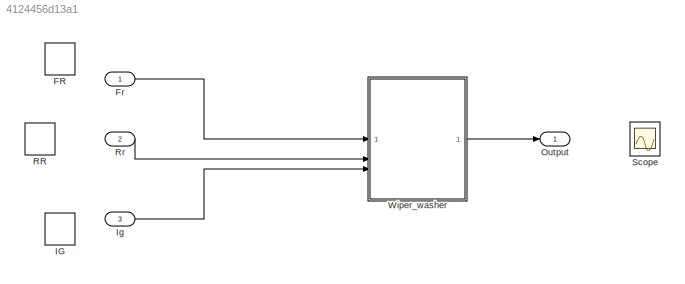
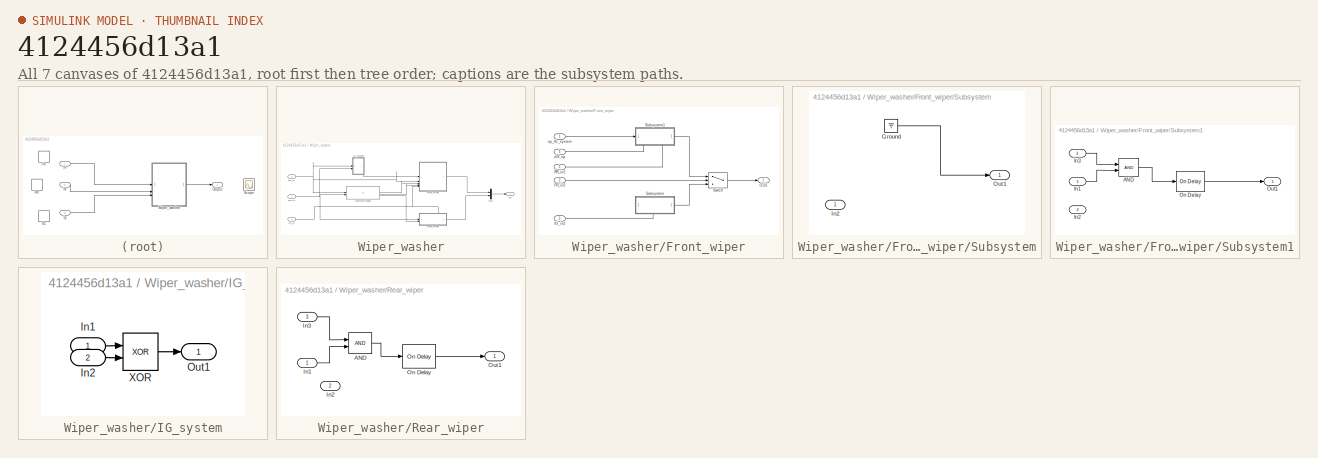
[diagram: thumbnail index - all 7 canvases of the model, root first then tree order]
MODEL slx_4124456d13a1
KIND model
CONFIG AbsTol = auto
CONFIG EnableMultiTasking = off
CONFIG FixedStep = auto
CONFIG MaxStep = auto
CONFIG MinStep = auto
CONFIG RelTol = 1e-3
CONFIG SampleTimeConstraint = Unconstrained
CONFIG SolverName = VariableStepAuto
CONFIG StartTime = 0.0
CONFIG StopTime = 100
BLOCK [DiscretePulseGenerator] FR
  Amplitude = 2
  Commented = on
  Period = 20
  PhaseDelay = 10
  PulseType = Time based
  PulseWidth = 50
BLOCK [Inport] Fr
BLOCK [DiscretePulseGenerator] IG
  Amplitude = 4
  Commented = on
  Period = 50
  PulseType = Time based
  PulseWidth = 75
BLOCK [Inport] Ig
  Port = 3
BLOCK [Outport] Output
BLOCK [DiscretePulseGenerator] RR
  Commented = on
  Period = 20
  PhaseDelay = 5
  PulseType = Time based
  PulseWidth = 50
BLOCK [Inport] Rr
  Port = 2
BLOCK [Scope] Scope
  Commented = on
  Floating = off
  NumInputPorts = 1
  ScopeSpecificationString = Simulink.scopes.TimeScopeBlockCfg('CurrentConfiguration', extmgr.ConfigurationSet(extmgr.Configuration('Core','General UI',true),extmgr.Configuration('Core','Source UI',true),extmgr.Configuration('Sources','WiredSimulink',true),extmgr.Configuration('Visuals','Time Domain',true,'SerializedDisplays',{struct('MinYLimReal','-0.125','MaxYLimReal','1.125','YLabelReal','','MinYLimMag','0.00000','MaxYLimM...<+1457ch>
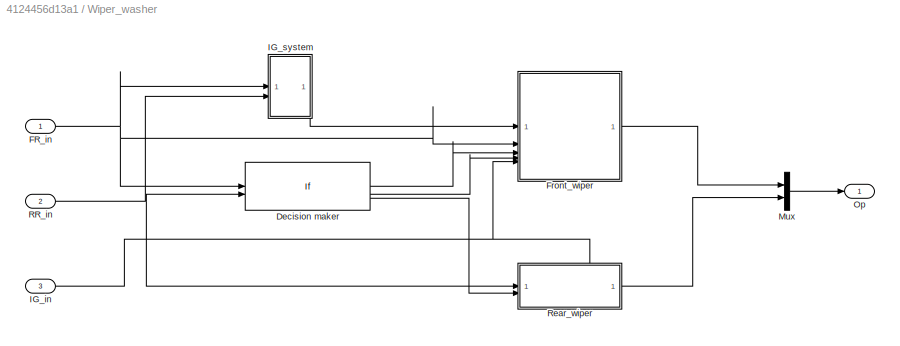
BLOCK [SubSystem] Wiper_washer
BLOCK [If] Wiper_washer/Decision maker
  ElseIfExpressions = u1 == 1 & u2 ==0
  IfExpression = u1 == 0 & u2 == 0
  NumInputs = 2
BLOCK [Inport] Wiper_washer/FR_in
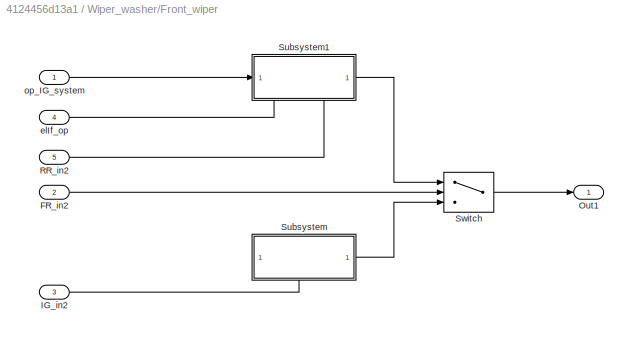
BLOCK [SubSystem] Wiper_washer/Front_wiper
BLOCK [Inport] Wiper_washer/Front_wiper/FR_in2
  Port = 2
BLOCK [Inport] Wiper_washer/Front_wiper/IG_in2
  Port = 3
BLOCK [Outport] Wiper_washer/Front_wiper/Out1
BLOCK [Inport] Wiper_washer/Front_wiper/RR_in2
  Port = 5
BLOCK [SubSystem] Wiper_washer/Front_wiper/Subsystem
  PortSchema = {"entries":[{"content":{"sides":[{"content":{},"type":"ConnectorPlacement.EquallySpacedRectSide","uuid":"82858bf5-5e77-4106-a34e-58aea0a827bd"},{"content":{"connectorIds":["Out1"],"side":"RIGHT"},"type":"ConnectorPlacement.EquallySpacedRectSide","uuid":"8faf0323-7e40-42c3-9fd5-1121a901cf1d"},{"content":{"side":"TOP"},"type":"ConnectorPlacement.EquallySpacedRectSide","uuid":"337a5927-3ca8-4f44-a8e2...<+349ch>
BLOCK [Ground] Wiper_washer/Front_wiper/Subsystem/Ground
BLOCK [Inport] Wiper_washer/Front_wiper/Subsystem/In2
BLOCK [Outport] Wiper_washer/Front_wiper/Subsystem/Out1
BLOCK [SubSystem] Wiper_washer/Front_wiper/Subsystem1
  PortSchema = {"entries":[{"content":{"sides":[{"content":{"connectorIds":["In1"]},"type":"ConnectorPlacement.EquallySpacedRectSide","uuid":"82858bf5-5e77-4106-a34e-58aea0a827bd"},{"content":{"connectorIds":["Out1"],"side":"RIGHT"},"type":"ConnectorPlacement.EquallySpacedRectSide","uuid":"8faf0323-7e40-42c3-9fd5-1121a901cf1d"},{"content":{"side":"TOP"},"type":"ConnectorPlacement.EquallySpacedRectSide","uuid":"3...<+377ch>
BLOCK [Logic] Wiper_washer/Front_wiper/Subsystem1/AND
  AllPortsSameDT = off
  IconShape = distinctive
  OutDataTypeStr = boolean
BLOCK [Inport] Wiper_washer/Front_wiper/Subsystem1/In1
BLOCK [Inport] Wiper_washer/Front_wiper/Subsystem1/In2
  Port = 2
BLOCK [Inport] Wiper_washer/Front_wiper/Subsystem1/In3
  Port = 3
BLOCK [Reference] Wiper_washer/Front_wiper/Subsystem1/On Delay  REF=spsOnDelayLib/On Delay
  LibrarySourceBlock = sps_lib/Control/On Delay
  SourceBlock = spsOnDelayLib/On Delay
  SourceType = On/Off Delay
BLOCK [Outport] Wiper_washer/Front_wiper/Subsystem1/Out1
BLOCK [Switch] Wiper_washer/Front_wiper/Switch
  Criteria = u2 > Threshold
  InputSameDT = off
  SaturateOnIntegerOverflow = off
  Threshold = 0.5
BLOCK [Inport] Wiper_washer/Front_wiper/elIf_op
  Port = 4
BLOCK [Inport] Wiper_washer/Front_wiper/op_IG_system
BLOCK [Inport] Wiper_washer/IG_in
  Port = 3
BLOCK [SubSystem] Wiper_washer/IG_system
BLOCK [Inport] Wiper_washer/IG_system/In1
BLOCK [Inport] Wiper_washer/IG_system/In2
  Port = 2
BLOCK [Outport] Wiper_washer/IG_system/Out1
BLOCK [Logic] Wiper_washer/IG_system/XOR
  AllPortsSameDT = off
  IconShape = distinctive
  Operator = XOR
  OutDataTypeStr = boolean
BLOCK [Mux] Wiper_washer/Mux
  DisplayOption = bar
  Inputs = 2
BLOCK [Outport] Wiper_washer/Op
BLOCK [Inport] Wiper_washer/RR_in
  Port = 2
BLOCK [SubSystem] Wiper_washer/Rear_wiper
  PortSchema = {"entries":[{"content":{"sides":[{"content":{"connectorIds":["In1"]},"type":"ConnectorPlacement.EquallySpacedRectSide","uuid":"82858bf5-5e77-4106-a34e-58aea0a827bd"},{"content":{"connectorIds":["Out1"],"side":"RIGHT"},"type":"ConnectorPlacement.EquallySpacedRectSide","uuid":"8faf0323-7e40-42c3-9fd5-1121a901cf1d"},{"content":{"connectorIds":["In2","In3"],"side":"TOP"},"type":"ConnectorPlacement.Equ...<+251ch>
BLOCK [Logic] Wiper_washer/Rear_wiper/AND
  AllPortsSameDT = off
  IconShape = distinctive
  OutDataTypeStr = boolean
BLOCK [Inport] Wiper_washer/Rear_wiper/In1
BLOCK [Inport] Wiper_washer/Rear_wiper/In2
  Port = 2
BLOCK [Inport] Wiper_washer/Rear_wiper/In3
  Port = 3
BLOCK [Reference] Wiper_washer/Rear_wiper/On Delay  REF=spsOnDelayLib/On Delay
  LibrarySourceBlock = sps_lib/Control/On Delay
  SourceBlock = spsOnDelayLib/On Delay
  SourceType = On/Off Delay
BLOCK [Outport] Wiper_washer/Rear_wiper/Out1
LINE Fr:1 -> Wiper_washer:1
LINE Ig:1 -> Wiper_washer:3
LINE Rr:1 -> Wiper_washer:2
LINE Wiper_washer/Decision maker:1 -> Wiper_washer/Front_wiper:3
LINE Wiper_washer/Decision maker:2 -> Wiper_washer/Front_wiper:4
LINE Wiper_washer/Decision maker:3 -> Wiper_washer/Rear_wiper:2
NET Wiper_washer/FR_in:1 -> Wiper_washer/Decision maker:1, Wiper_washer/Front_wiper:2, Wiper_washer/IG_system:1
LINE Wiper_washer/Front_wiper/FR_in2:1 -> Wiper_washer/Front_wiper/Switch:2
LINE Wiper_washer/Front_wiper/IG_in2:1 -> Wiper_washer/Front_wiper/Subsystem:1
LINE Wiper_washer/Front_wiper/RR_in2:1 -> Wiper_washer/Front_wiper/Subsystem1:3
LINE Wiper_washer/Front_wiper/Subsystem/Ground:1 -> Wiper_washer/Front_wiper/Subsystem/Out1:1
LINE Wiper_washer/Front_wiper/Subsystem1/AND:1 -> Wiper_washer/Front_wiper/Subsystem1/On Delay:1
LINE Wiper_washer/Front_wiper/Subsystem1/In1:1 -> Wiper_washer/Front_wiper/Subsystem1/AND:2
LINE Wiper_washer/Front_wiper/Subsystem1/In3:1 -> Wiper_washer/Front_wiper/Subsystem1/AND:1
LINE Wiper_washer/Front_wiper/Subsystem1/On Delay:1 -> Wiper_washer/Front_wiper/Subsystem1/Out1:1
LINE Wiper_washer/Front_wiper/Subsystem1:1 -> Wiper_washer/Front_wiper/Switch:1
LINE Wiper_washer/Front_wiper/Subsystem:1 -> Wiper_washer/Front_wiper/Switch:3
LINE Wiper_washer/Front_wiper/Switch:1 -> Wiper_washer/Front_wiper/Out1:1
LINE Wiper_washer/Front_wiper/elIf_op:1 -> Wiper_washer/Front_wiper/Subsystem1:2
LINE Wiper_washer/Front_wiper/op_IG_system:1 -> Wiper_washer/Front_wiper/Subsystem1:1
LINE Wiper_washer/Front_wiper:1 -> Wiper_washer/Mux:1
NET Wiper_washer/IG_in:1 -> Wiper_washer/Front_wiper:5, Wiper_washer/Rear_wiper:3
LINE Wiper_washer/IG_system/In1:1 -> Wiper_washer/IG_system/XOR:1
LINE Wiper_washer/IG_system/In2:1 -> Wiper_washer/IG_system/XOR:2
LINE Wiper_washer/IG_system/XOR:1 -> Wiper_washer/IG_system/Out1:1
LINE Wiper_washer/IG_system:1 -> Wiper_washer/Front_wiper:1
LINE Wiper_washer/Mux:1 -> Wiper_washer/Op:1
NET Wiper_washer/RR_in:1 -> Wiper_washer/Decision maker:2, Wiper_washer/IG_system:2, Wiper_washer/Rear_wiper:1
LINE Wiper_washer/Rear_wiper/AND:1 -> Wiper_washer/Rear_wiper/On Delay:1
LINE Wiper_washer/Rear_wiper/In1:1 -> Wiper_washer/Rear_wiper/AND:2
LINE Wiper_washer/Rear_wiper/In3:1 -> Wiper_washer/Rear_wiper/AND:1
LINE Wiper_washer/Rear_wiper/On Delay:1 -> Wiper_washer/Rear_wiper/Out1:1
LINE Wiper_washer/Rear_wiper:1 -> Wiper_washer/Mux:2
LINE Wiper_washer:1 -> Output:1
note: NET lines group one-source signal fan-out (src -> all destinations, sorted); 1:1 wires keep LINE
